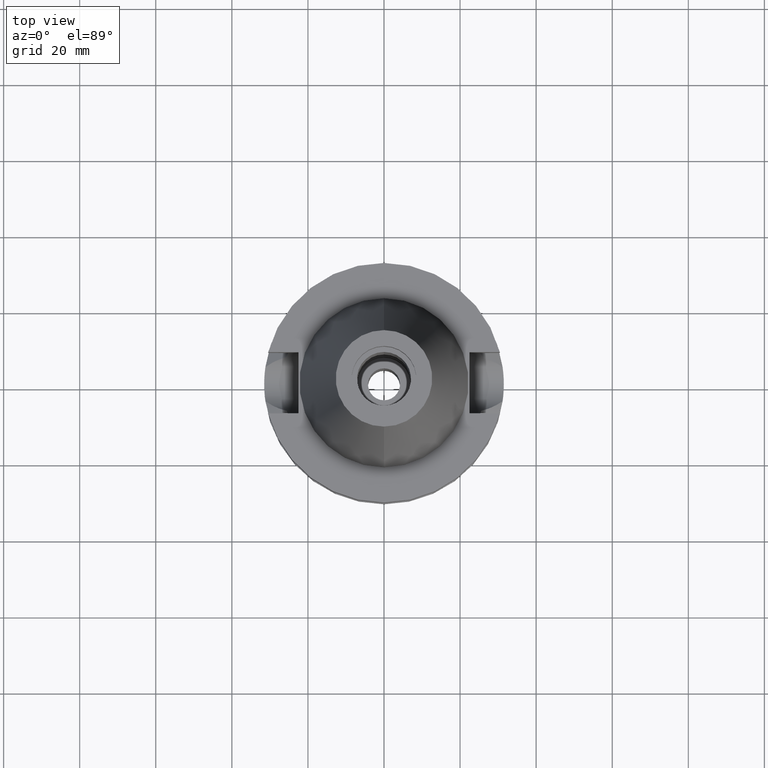
[diagram: clean part render]
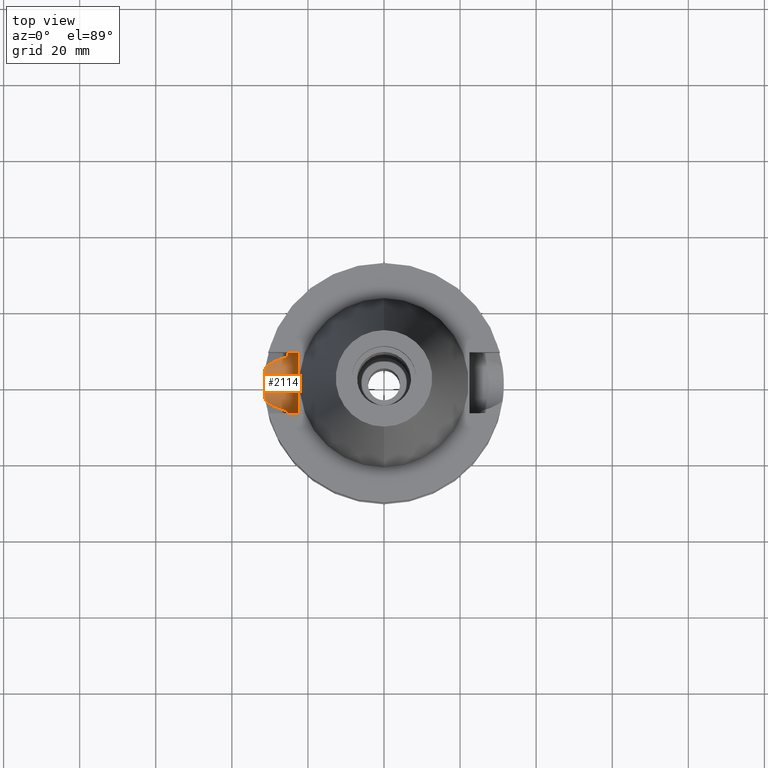
[diagram: same view with one face highlighted and labeled with its STEP entity id]
A machine part, top view. The second image highlights one B-rep face of the part: STEP entity #2114.
In plain terms, the highlighted cylindrical surface (edge-blend (fillet) strip) has radius 8.05 mm, axis along (-1, 0, 0).
Its self-contained STEP definition (entity closure, byte-faithful):
#4 = CARTESIAN_POINT ( 'NONE',  ( -31.27846961443781737, 3.743983546130084772, -22.08754853579502964 ) ) ;
#18 = CARTESIAN_POINT ( 'NONE',  ( -31.41215830074744275, 2.351096289897533165, -22.64905788739061521 ) ) ;
#30 = CARTESIAN_POINT ( 'NONE',  ( -25.53175183775000079, -7.097862220092999941, -18.74774300138999905 ) ) ;
#37 = CARTESIAN_POINT ( 'NONE',  ( -31.43626029286639678, -2.006672135009983204, -22.74702249194593051 ) ) ;
#45 = CARTESIAN_POINT ( 'NONE',  ( -25.53175183775000079, -7.097862220092999941, -18.74774300138999905 ) ) ;
#68 = CARTESIAN_POINT ( 'NONE',  ( -30.49822227216838755, -4.972651065609727361, -21.28793183650920895 ) ) ;
#83 = ORIENTED_EDGE ( 'NONE', *, *, #1819, .F. ) ;
#84 = CARTESIAN_POINT ( 'NONE',  ( -30.50639402074084572, 4.967198767476258325, -21.29195867160673572 ) ) ;
#91 = EDGE_CURVE ( 'NONE', #1546, #259, #2782, .T. ) ;
#99 = CARTESIAN_POINT ( 'NONE',  ( -30.85491276307930875, -4.731410132183781592, -21.46950411540202808 ) ) ;
#115 = CARTESIAN_POINT ( 'NONE',  ( -28.95634549940901792, -5.829783326866787796, -20.50136817205541107 ) ) ;
#131 = CARTESIAN_POINT ( 'NONE',  ( -29.91427981895173005, -5.323654264957231597, -20.99025992100829896 ) ) ;
#207 = CARTESIAN_POINT ( 'NONE',  ( -31.37907245650107413, 2.757363126055049740, -22.51361630134539382 ) ) ;
#214 = CARTESIAN_POINT ( 'NONE',  ( -25.32844777903620681, -7.792527725354012169, -16.96974754110893002 ) ) ;
#235 = CARTESIAN_POINT ( 'NONE',  ( -31.47056816806594171, -1.371798205037736418, -22.88470967410015078 ) ) ;
#251 = CARTESIAN_POINT ( 'NONE',  ( -31.33719342388233997, 3.200318897617061342, -22.33920407941110753 ) ) ;
#259 = VERTEX_POINT ( 'NONE', #307 ) ;
#262 = CARTESIAN_POINT ( 'NONE',  ( -25.24772266958000344, -8.050000000000000711, -14.94999999999999929 ) ) ;
#287 = VERTEX_POINT ( 'NONE', #2611 ) ;
#307 = CARTESIAN_POINT ( 'NONE',  ( -31.17899877608999759, -4.485536235554000051, -21.63449434733000132 ) ) ;
#349 = ORIENTED_EDGE ( 'NONE', *, *, #2545, .T. ) ;
#375 = CARTESIAN_POINT ( 'NONE',  ( -29.72767212829086247, 5.436036614681126089, -20.89499134450880291 ) ) ;
#389 = CARTESIAN_POINT ( 'NONE',  ( -25.53175183775000079, 7.097862220092999941, -18.74774300138999905 ) ) ;
#419 = ORIENTED_EDGE ( 'NONE', *, *, #2541, .F. ) ;
#454 = CARTESIAN_POINT ( 'NONE',  ( -25.27269700110156236, 7.971767412704486411, -16.08147680839861238 ) ) ;
#485 = DIRECTION ( 'NONE',  ( -1.000000000000000000, 0.0000000000000000000, 0.0000000000000000000 ) ) ;
#502 = CARTESIAN_POINT ( 'NONE',  ( -31.17899877608999759, -4.485536235554000051, -21.63449434733000132 ) ) ;
#576 = CARTESIAN_POINT ( 'NONE',  ( -25.24772266958000344, 8.050000000000000711, -14.94999999999999929 ) ) ;
#593 = AXIS2_PLACEMENT_3D ( 'NONE', #2198, #485, #2678 ) ;
#595 = B_SPLINE_CURVE_WITH_KNOTS ( 'NONE', 3,
 ( #2160, #1923, #897, #454, #1619, #2635, #1180, #1148, #2646, #672, #2148, #2875, #2889, #1866 ),
 .UNSPECIFIED., .F., .F.,
 ( 4, 2, 2, 1, 1, 2, 2, 4 ),
 ( 0.0000000000000000000, 0.2500000000000174305, 0.3750000000000253686, 0.4375000000000293099, 0.4687500000000301426, 0.4843750000000306422, 0.5000000000000311973, 1.000000000000000000 ),
 .UNSPECIFIED. ) ;
#607 = CARTESIAN_POINT ( 'NONE',  ( -25.53175183775000079, -7.097862220092999941, -18.74774300138999905 ) ) ;
#642 = CARTESIAN_POINT ( 'NONE',  ( -29.23378766771774551, -5.692344475498301470, -20.64302832027229329 ) ) ;
#672 = CARTESIAN_POINT ( 'NONE',  ( -25.31954826170011685, 7.821386849067988756, -16.85495274079643835 ) ) ;
#681 = VECTOR ( 'NONE', #2400, 1000.000000000000000 ) ;
#714 = CARTESIAN_POINT ( 'NONE',  ( -31.41073716363128199, 2.369955556982202172, -22.64326362460532494 ) ) ;
#735 = ORIENTED_EDGE ( 'NONE', *, *, #3055, .F. ) ;
#838 = CARTESIAN_POINT ( 'NONE',  ( -29.71148121507111739, -5.438841908908276679, -20.88682261267824103 ) ) ;
#855 = CARTESIAN_POINT ( 'NONE',  ( -29.06793370069313198, -5.774989919560167273, -20.55834678393752313 ) ) ;
#870 = CARTESIAN_POINT ( 'NONE',  ( -27.79606993857326813, 6.342693603288873661, -19.90841700339127485 ) ) ;
#884 = CARTESIAN_POINT ( 'NONE',  ( -27.35607374843232975, 6.511504849786839522, -19.68325244859916978 ) ) ;
#897 = CARTESIAN_POINT ( 'NONE',  ( -25.25396625246039406, 8.030896711162538892, -15.59378553528506473 ) ) ;
#908 = CIRCLE ( 'NONE', #3084, 8.050000000000000711 ) ;
#969 = VERTEX_POINT ( 'NONE', #2730 ) ;
#998 = CARTESIAN_POINT ( 'NONE',  ( -25.34388450889784750, -7.742333382928174856, -17.15666984720027344 ) ) ;
#1006 = CARTESIAN_POINT ( 'NONE',  ( -31.41604485789486390, -2.298564670171074908, -22.66490387661687578 ) ) ;
#1010 = EDGE_LOOP ( 'NONE', ( #2112, #83, #1462, #735, #2655, #419, #2764, #349 ) ) ;
#1015 = B_SPLINE_CURVE_WITH_KNOTS ( 'NONE', 3,
 ( #1571, #2275, #84, #375, #2089, #1073, #2042, #2819, #870, #2540, #1835, #3003, #884, #2059, #2308, #2804 ),
 .UNSPECIFIED., .F., .F.,
 ( 4, 2, 2, 2, 1, 1, 2, 2, 4 ),
 ( 0.0000000000000000000, 0.2499999999999996669, 0.4999999999999993339, 0.6249999999999988898, 0.6874999999999992228, 0.7187499999999994449, 0.7343749999999996669, 0.7499999999999998890, 1.000000000000000000 ),
 .UNSPECIFIED. ) ;
#1034 = CARTESIAN_POINT ( 'NONE',  ( -25.48482038766596958, -7.266679548433801372, -18.43222872448819771 ) ) ;
#1073 = CARTESIAN_POINT ( 'NONE',  ( -28.61259214182868504, 5.994070779386686532, -20.32581268351990289 ) ) ;
#1148 = CARTESIAN_POINT ( 'NONE',  ( -25.31206084004277201, 7.845614529401171211, -16.75329855850939254 ) ) ;
#1180 = CARTESIAN_POINT ( 'NONE',  ( -25.30215890781840216, 7.877570599500772097, -16.61088255776608591 ) ) ;
#1251 = EDGE_CURVE ( 'NONE', #287, #3099, #908, .T. ) ;
#1305 = LINE ( 'NONE', #1324, #1306 ) ;
#1306 = VECTOR ( 'NONE', #1596, 1000.000000000000000 ) ;
#1324 = CARTESIAN_POINT ( 'NONE',  ( -22.50000000000000000, -8.050000000000000711, -14.94999999999999929 ) ) ;
#1363 = CARTESIAN_POINT ( 'NONE',  ( -22.50000000000000000, 1.807578675540999863E-14, -14.94999999999999929 ) ) ;
#1445 = CARTESIAN_POINT ( 'NONE',  ( -31.42474741543221128, -2.177058571073353210, -22.70031563427412280 ) ) ;
#1457 = CARTESIAN_POINT ( 'NONE',  ( -31.40749760860635931, 2.412424580010193331, -22.63005222544150286 ) ) ;
#1462 = ORIENTED_EDGE ( 'NONE', *, *, #1251, .T. ) ;
#1473 = CARTESIAN_POINT ( 'NONE',  ( -31.39044521733794824, 2.626578571190216316, -22.56039104643951276 ) ) ;
#1542 = VERTEX_POINT ( 'NONE', #576 ) ;
#1546 = VERTEX_POINT ( 'NONE', #2811 ) ;
#1571 = CARTESIAN_POINT ( 'NONE',  ( -31.17899877608999759, 4.485536235554000051, -21.63449434733000132 ) ) ;
#1596 = DIRECTION ( 'NONE',  ( -1.000000000000000000, 1.616208268639000174E-14, -1.034373291929000154E-14 ) ) ;
#1619 = CARTESIAN_POINT ( 'NONE',  ( -25.28050147970204620, 7.946982733727889325, -16.24437200640009493 ) ) ;
#1692 = CYLINDRICAL_SURFACE ( 'NONE', #593, 8.050000000000000711 ) ;
#1729 = CARTESIAN_POINT ( 'NONE',  ( -25.35412323723021544, -7.708830947932238331, -17.27007949472962878 ) ) ;
#1732 = B_SPLINE_CURVE_WITH_KNOTS ( 'NONE', 3,
 ( #45, #1034, #3141, #1937, #2904, #1729, #998, #2921, #214, #2446, #2483, #2004, #2241, #262 ),
 .UNSPECIFIED., .F., .F.,
 ( 4, 2, 2, 1, 1, 2, 2, 4 ),
 ( 0.0000000000000000000, 0.2500000000000041078, 0.3750000000000073830, 0.4375000000000078826, 0.4687500000000093259, 0.4843750000000099365, 0.5000000000000105471, 1.000000000000000000 ),
 .UNSPECIFIED. ) ;
#1802 = CARTESIAN_POINT ( 'NONE',  ( -27.91292627605387011, -6.327668844575878637, -19.96852071600007505 ) ) ;
#1818 = CARTESIAN_POINT ( 'NONE',  ( -31.17899877608999759, -4.485536235554000051, -21.63449434733000132 ) ) ;
#1819 = EDGE_CURVE ( 'NONE', #287, #969, #1305, .T. ) ;
#1835 = CARTESIAN_POINT ( 'NONE',  ( -27.45996348729500269, 6.472521099886693996, -19.73643029781616320 ) ) ;
#1866 = CARTESIAN_POINT ( 'NONE',  ( -25.53175183775000079, 7.097862220092999941, -18.74774300138999905 ) ) ;
#1923 = CARTESIAN_POINT ( 'NONE',  ( -25.24772266958001055, 8.050000000000018474, -15.27000344021195666 ) ) ;
#1927 = CARTESIAN_POINT ( 'NONE',  ( -31.41955969787372283, -2.249977568489423430, -22.67921356346757733 ) ) ;
#1937 = CARTESIAN_POINT ( 'NONE',  ( -25.39164951572487183, -7.584807667336966652, -17.65197957159458753 ) ) ;
#1941 = CARTESIAN_POINT ( 'NONE',  ( -31.23226293288975697, 4.115296649378654692, -21.88293843200666799 ) ) ;
#1955 = CARTESIAN_POINT ( 'NONE',  ( -31.47164681449472212, 1.548077469545440676, -22.89150997833752044 ) ) ;
#1992 = CARTESIAN_POINT ( 'NONE',  ( -31.44511396460612929, -1.860301245813810622, -22.78273863314811720 ) ) ;
#2004 = CARTESIAN_POINT ( 'NONE',  ( -25.27269391207093463, -7.973288729731969227, -16.24537813257547469 ) ) ;
#2025 = CARTESIAN_POINT ( 'NONE',  ( -28.90137288117141878, -5.856393695850977466, -20.47329639326756023 ) ) ;
#2042 = CARTESIAN_POINT ( 'NONE',  ( -28.37054054549951942, 6.102904360480154722, -20.20214164577669536 ) ) ;
#2059 = CARTESIAN_POINT ( 'NONE',  ( -26.79042227108442376, 6.720809715874808354, -19.39366696241368260 ) ) ;
#2089 = CARTESIAN_POINT ( 'NONE',  ( -29.30449622266349863, 5.664184692016213774, -20.67915173107727966 ) ) ;
#2112 = ORIENTED_EDGE ( 'NONE', *, *, #2753, .T. ) ;
#2114 = ADVANCED_FACE ( 'NONE', ( #2439 ), #1692, .F. ) ;
#2148 = CARTESIAN_POINT ( 'NONE',  ( -25.32122245610176847, 7.815962707354275452, -16.87706809356136262 ) ) ;
#2160 = CARTESIAN_POINT ( 'NONE',  ( -25.24772266958000344, 8.050000000000000711, -14.94999999999999929 ) ) ;
#2198 = CARTESIAN_POINT ( 'NONE',  ( -22.50000000000000000, 1.807578675540999863E-14, -14.94999999999999929 ) ) ;
#2212 = CARTESIAN_POINT ( 'NONE',  ( -31.36242476482017238, -3.016548684969622141, -22.44626900665777569 ) ) ;
#2241 = CARTESIAN_POINT ( 'NONE',  ( -25.24772266957999989, -8.049999999999981171, -15.58999736273363546 ) ) ;
#2275 = CARTESIAN_POINT ( 'NONE',  ( -30.86040160438784596, 4.727245920379973043, -21.47229845136506654 ) ) ;
#2308 = CARTESIAN_POINT ( 'NONE',  ( -26.19309943227329640, 6.916069099007759569, -19.08750862679706017 ) ) ;
#2318 = DIRECTION ( 'NONE',  ( 1.000000000000000000, 0.0000000000000000000, 0.0000000000000000000 ) ) ;
#2338 = LINE ( 'NONE', #2830, #681 ) ;
#2400 = DIRECTION ( 'NONE',  ( 1.000000000000000000, 1.551559937893000172E-14, -3.620306521749999889E-14 ) ) ;
#2406 = CARTESIAN_POINT ( 'NONE',  ( -31.46146862952803502, -1.567358629207376453, -22.84847756273314445 ) ) ;
#2419 = CARTESIAN_POINT ( 'NONE',  ( -31.50032380699093437, 0.7535289836077879722, -23.00127312585621198 ) ) ;
#2437 = CARTESIAN_POINT ( 'NONE',  ( -31.35500365821759061, 3.021264144778362137, -22.41390211746503525 ) ) ;
#2439 = FACE_OUTER_BOUND ( 'NONE', #1010, .T. ) ;
#2446 = CARTESIAN_POINT ( 'NONE',  ( -25.32550670071061916, -7.802071535306239092, -16.93256103013014169 ) ) ;
#2483 = CARTESIAN_POINT ( 'NONE',  ( -25.32419709970849553, -7.806318959900105270, -16.91578803901766292 ) ) ;
#2540 = CARTESIAN_POINT ( 'NONE',  ( -27.56190907214288899, 6.433827093424643095, -19.78860623976856203 ) ) ;
#2541 = EDGE_CURVE ( 'NONE', #1546, #2680, #1015, .T. ) ;
#2545 = EDGE_CURVE ( 'NONE', #259, #2777, #2578, .T. ) ;
#2578 = B_SPLINE_CURVE_WITH_KNOTS ( 'NONE', 3,
 ( #1818, #99, #68, #131, #838, #3018, #642, #855, #115, #2025, #1802, #2789, #607 ),
 .UNSPECIFIED., .F., .F.,
 ( 4, 2, 2, 1, 2, 2, 4 ),
 ( 0.0000000000000000000, 0.2500000000000041078, 0.3750000000000061617, 0.4375000000000075495, 0.4687500000000078826, 0.5000000000000082157, 1.000000000000000000 ),
 .UNSPECIFIED. ) ;
#2611 = CARTESIAN_POINT ( 'NONE',  ( -22.50000000000000000, -8.050000000000000711, -14.94999999999999929 ) ) ;
#2635 = CARTESIAN_POINT ( 'NONE',  ( -25.29454954118293841, 7.902007388341819372, -16.48871296864355429 ) ) ;
#2641 = EDGE_CURVE ( 'NONE', #1542, #2680, #595, .T. ) ;
#2646 = CARTESIAN_POINT ( 'NONE',  ( -25.31652402624243337, 7.831177078179799800, -16.81429685340960134 ) ) ;
#2655 = ORIENTED_EDGE ( 'NONE', *, *, #2641, .T. ) ;
#2661 = CARTESIAN_POINT ( 'NONE',  ( -31.49983371806498056, -0.3969849275423127932, -22.99934650678998693 ) ) ;
#2678 = DIRECTION ( 'NONE',  ( 0.0000000000000000000, 0.0000000000000000000, -1.000000000000000000 ) ) ;
#2680 = VERTEX_POINT ( 'NONE', #389 ) ;
#2691 = CARTESIAN_POINT ( 'NONE',  ( -31.28458591552585943, -3.751599172477773969, -22.12699252595170307 ) ) ;
#2730 = CARTESIAN_POINT ( 'NONE',  ( -25.24772266958000344, -8.050000000000000711, -14.94999999999999929 ) ) ;
#2753 = EDGE_CURVE ( 'NONE', #2777, #969, #1732, .T. ) ;
#2764 = ORIENTED_EDGE ( 'NONE', *, *, #91, .T. ) ;
#2777 = VERTEX_POINT ( 'NONE', #30 ) ;
#2782 = B_SPLINE_CURVE_WITH_KNOTS ( 'NONE', 3,
 ( #2957, #1941, #4, #251, #2437, #207, #1473, #3132, #1457, #714, #18, #1955, #2419, #2661, #3144, #235, #2406, #1992, #37, #1445, #1927, #1006, #2893, #2212, #2691, #502 ),
 .UNSPECIFIED., .F., .F.,
 ( 4, 2, 2, 1, 1, 2, 2, 2, 2, 2, 1, 1, 2, 2, 4 ),
 ( 0.0000000000000000000, 0.1250000000000029143, 0.1875000000000045519, 0.2187500000000049682, 0.2343750000000051903, 0.2421875000000053568, 0.2500000000000055511, 0.5000000000000049960, 0.6250000000000046629, 0.6875000000000045519, 0.7187500000000043299, 0.7343750000000041078, 0.7421875000000042188, 0.7500000000000042188, 1.000000000000000000 ),
 .UNSPECIFIED. ) ;
#2789 = CARTESIAN_POINT ( 'NONE',  ( -26.80910056756276205, -6.746740942523380191, -19.40397762542978910 ) ) ;
#2804 = CARTESIAN_POINT ( 'NONE',  ( -25.53175183775000079, 7.097862220092999941, -18.74774300138999905 ) ) ;
#2811 = CARTESIAN_POINT ( 'NONE',  ( -31.17899877608999759, 4.485536235554000051, -21.63449434733000132 ) ) ;
#2819 = CARTESIAN_POINT ( 'NONE',  ( -27.99040296707460129, 6.263248983644448487, -20.00779805632577890 ) ) ;
#2830 = CARTESIAN_POINT ( 'NONE',  ( -25.24772266958000344, 8.050000000000000711, -14.94999999999999929 ) ) ;
#2875 = CARTESIAN_POINT ( 'NONE',  ( -25.36818832151802283, 7.663695285312785543, -17.48840541837618190 ) ) ;
#2889 = CARTESIAN_POINT ( 'NONE',  ( -25.43789037938646302, 7.435491690473143400, -18.11672414062476832 ) ) ;
#2893 = CARTESIAN_POINT ( 'NONE',  ( -31.41408065394639237, -2.325228041220380959, -22.65689912745741452 ) ) ;
#2904 = CARTESIAN_POINT ( 'NONE',  ( -25.37573308857942322, -7.637710303739487117, -17.49818662950802306 ) ) ;
#2921 = CARTESIAN_POINT ( 'NONE',  ( -25.33293017119236268, -7.777974374871634566, -17.02562462713753177 ) ) ;
#2957 = CARTESIAN_POINT ( 'NONE',  ( -31.17899877608999759, 4.485536235554000051, -21.63449434733000132 ) ) ;
#3003 = CARTESIAN_POINT ( 'NONE',  ( -27.39164659316629979, 6.498232964799213640, -19.70146223166380395 ) ) ;
#3018 = CARTESIAN_POINT ( 'NONE',  ( -29.39505663003762237, -5.608383756552233201, -20.72534610654349407 ) ) ;
#3055 = EDGE_CURVE ( 'NONE', #1542, #3099, #2338, .T. ) ;
#3064 = DIRECTION ( 'NONE',  ( 0.0000000000000000000, 0.0000000000000000000, -1.000000000000000000 ) ) ;
#3084 = AXIS2_PLACEMENT_3D ( 'NONE', #1363, #2318, #3064 ) ;
#3097 = CARTESIAN_POINT ( 'NONE',  ( -22.50000000000000000, 8.050000000000000711, -14.94999999999999929 ) ) ;
#3099 = VERTEX_POINT ( 'NONE', #3097 ) ;
#3132 = CARTESIAN_POINT ( 'NONE',  ( -31.40255557128086750, 2.476306052346672448, -22.60989025223918247 ) ) ;
#3141 = CARTESIAN_POINT ( 'NONE',  ( -25.44392837589916567, -7.408239565059886900, -18.11709494172728796 ) ) ;
#3144 = CARTESIAN_POINT ( 'NONE',  ( -31.49245606944946729, -0.7860991982188147986, -22.97124303091316833 ) ) ;